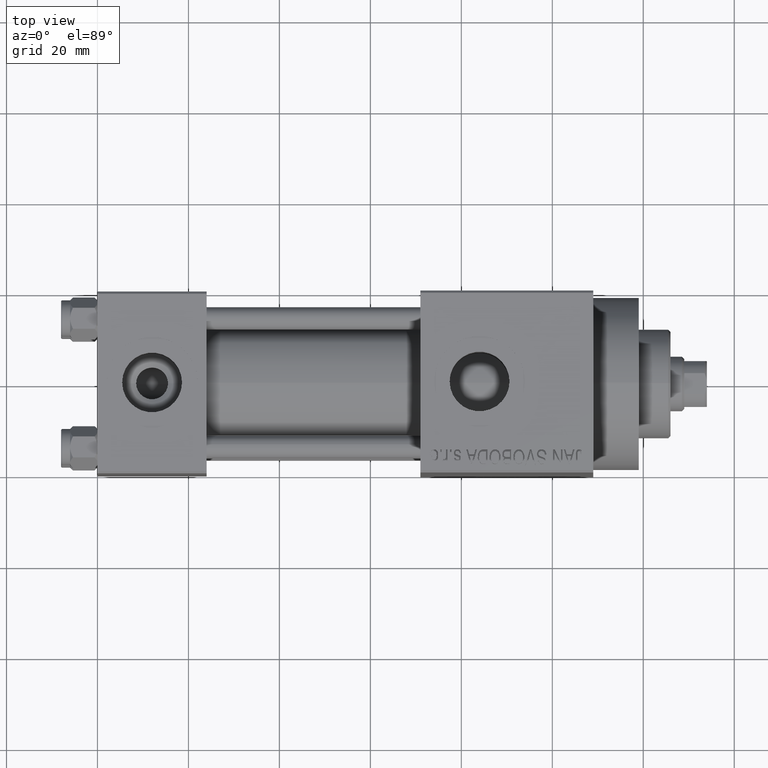
[diagram: clean part render]
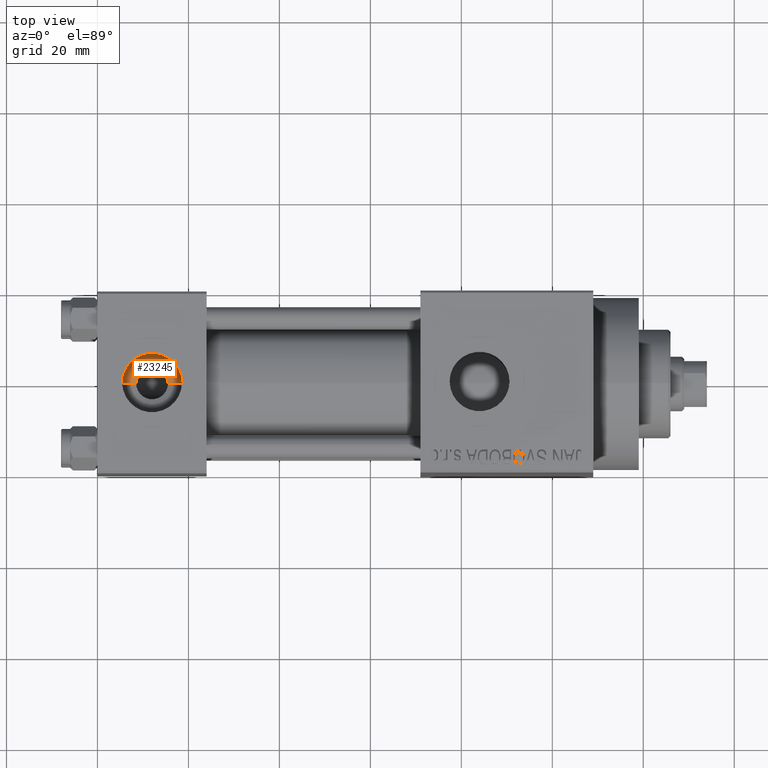
[diagram: same view with one face highlighted and labeled with its STEP entity id]
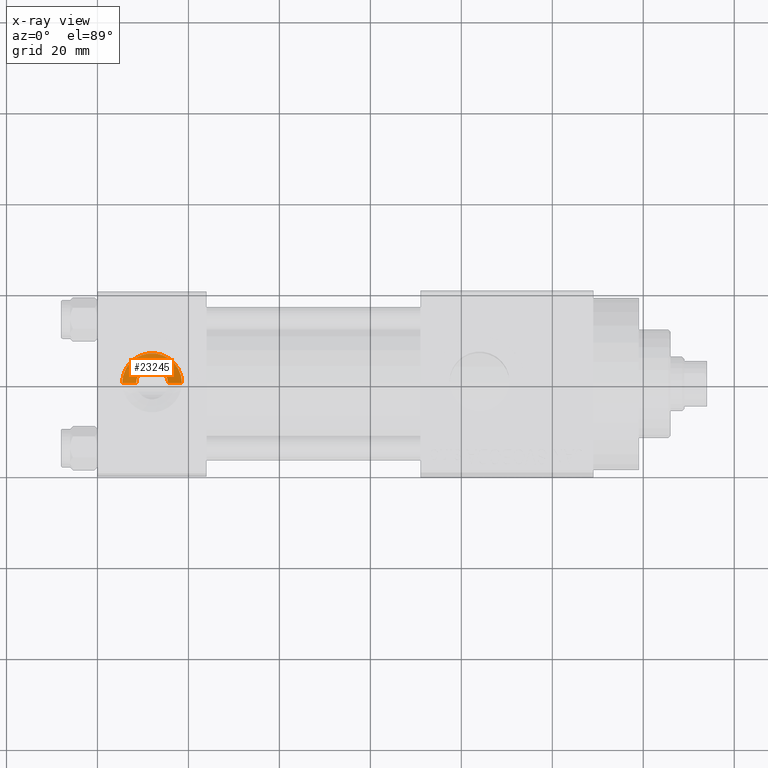
[diagram: x-ray of the same camera — body ghosted, the highlighted face saturated]
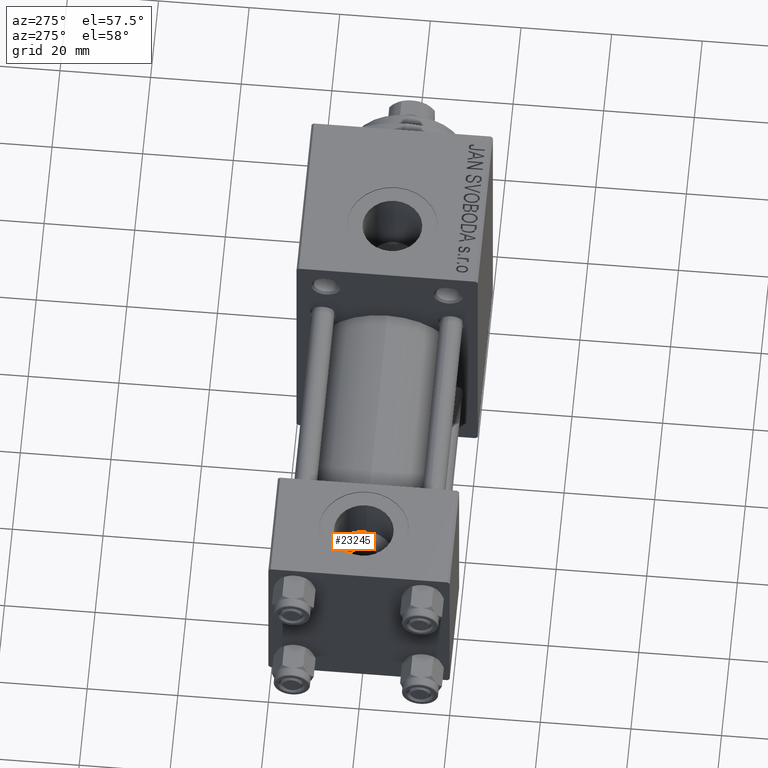
[diagram: same view with one face highlighted and labeled with its STEP entity id]
A machine part, top view. The second image highlights one B-rep face of the part: STEP entity #23245.
The next image is the same camera in x-ray: the body ghosted, the highlighted face saturated — about 0% of this face is hidden behind the body in this view.
A second angle (auxiliary view) of the same face is appended — the face is thin or edge-on in the first view.
In plain terms, the highlighted conical surface has half-angle 60.452 deg.
Its self-contained STEP definition (entity closure, byte-faithful):
#304 = VERTEX_POINT ( 'NONE', #17054 ) ;
#679 = CARTESIAN_POINT ( 'NONE',  ( 15.50000000000000000, 1.540743955509788682E-30, 7.419999999999996376 ) ) ;
#2754 = LINE ( 'NONE', #43431, #39322 ) ;
#2982 = DIRECTION ( 'NONE',  ( -0.8699429503561852961, 1.065372849594507103E-16, 0.4931523731318503412 ) ) ;
#4603 = VECTOR ( 'NONE', #4790, 1000.000000000000000 ) ;
#4790 = DIRECTION ( 'NONE',  ( 0.8699429503561852961, 0.000000000000000000, 0.4931523731318503412 ) ) ;
#5940 = DIRECTION ( 'NONE',  ( 0.000000000000000000, 0.000000000000000000, 1.000000000000000000 ) ) ;
#6169 = DIRECTION ( 'NONE',  ( 1.000000000000000000, 0.000000000000000000, 0.000000000000000000 ) ) ;
#6549 = ORIENTED_EDGE ( 'NONE', *, *, #30805, .T. ) ;
#8085 = CIRCLE ( 'NONE', #24079, 6.579999999999999183 ) ;
#10395 = DIRECTION ( 'NONE',  ( 1.000000000000000000, 0.000000000000000000, 0.000000000000000000 ) ) ;
#11233 = CARTESIAN_POINT ( 'NONE',  ( 12.00000000000000000, 1.540743955509788682E-30, 7.419999999999996376 ) ) ;
#12182 = CARTESIAN_POINT ( 'NONE',  ( 15.50000000000000000, 1.540743955509788682E-30, 7.419999999999996376 ) ) ;
#12403 = EDGE_CURVE ( 'NONE', #42324, #14713, #45213, .T. ) ;
#13825 = CARTESIAN_POINT ( 'NONE',  ( 8.500000000000000000, 4.286263797015752865E-16, 7.419999999999996376 ) ) ;
#14200 = DIRECTION ( 'NONE',  ( -0.000000000000000000, -0.000000000000000000, -1.000000000000000000 ) ) ;
#14713 = VERTEX_POINT ( 'NONE', #13825 ) ;
#15781 = AXIS2_PLACEMENT_3D ( 'NONE', #20708, #5940, #6169 ) ;
#16335 = EDGE_CURVE ( 'NONE', #19314, #304, #8085, .T. ) ;
#17054 = CARTESIAN_POINT ( 'NONE',  ( 18.57999999999999829, 1.540743955509788682E-30, 9.165987261146492315 ) ) ;
#19204 = EDGE_LOOP ( 'NONE', ( #27443, #19911, #6549, #23060 ) ) ;
#19314 = VERTEX_POINT ( 'NONE', #28985 ) ;
#19911 = ORIENTED_EDGE ( 'NONE', *, *, #12403, .F. ) ;
#20708 = CARTESIAN_POINT ( 'NONE',  ( 12.00000000000000000, 1.540743955509788682E-30, 7.419999999999996376 ) ) ;
#22456 = EDGE_CURVE ( 'NONE', #14713, #19314, #2754, .T. ) ;
#22660 = DIRECTION ( 'NONE',  ( 1.000000000000000000, 0.000000000000000000, 0.000000000000000000 ) ) ;
#23060 = ORIENTED_EDGE ( 'NONE', *, *, #16335, .F. ) ;
#23245 = ADVANCED_FACE ( 'NONE', ( #45464 ), #30223, .F. ) ;
#24079 = AXIS2_PLACEMENT_3D ( 'NONE', #46813, #14200, #10395 ) ;
#26973 = AXIS2_PLACEMENT_3D ( 'NONE', #11233, #37175, #22660 ) ;
#27443 = ORIENTED_EDGE ( 'NONE', *, *, #22456, .F. ) ;
#28985 = CARTESIAN_POINT ( 'NONE',  ( 5.420000000000000817, 8.058175938389596335E-16, 9.165987261146492315 ) ) ;
#30223 = CONICAL_SURFACE ( 'NONE', #15781, 3.499999999999999556, 1.055086625138361267 ) ;
#30805 = EDGE_CURVE ( 'NONE', #42324, #304, #37419, .T. ) ;
#37175 = DIRECTION ( 'NONE',  ( 0.000000000000000000, 0.000000000000000000, 1.000000000000000000 ) ) ;
#37419 = LINE ( 'NONE', #12182, #4603 ) ;
#39322 = VECTOR ( 'NONE', #2982, 1000.000000000000000 ) ;
#42324 = VERTEX_POINT ( 'NONE', #679 ) ;
#43431 = CARTESIAN_POINT ( 'NONE',  ( 8.500000000000000000, 4.286263797015751879E-16, 7.419999999999996376 ) ) ;
#45213 = CIRCLE ( 'NONE', #26973, 3.499999999999999556 ) ;
#45464 = FACE_OUTER_BOUND ( 'NONE', #19204, .T. ) ;
#46813 = CARTESIAN_POINT ( 'NONE',  ( 12.00000000000000000, 1.540743955509788682E-30, 9.165987261146492315 ) ) ;